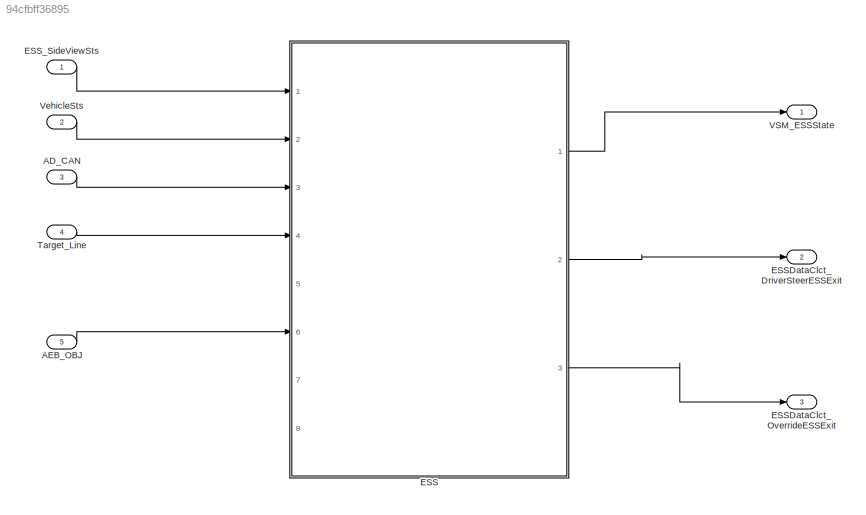
MODEL slx_94cfbff36895
KIND model
CONFIG AbsTol = auto
CONFIG EnableMultiTasking = off
CONFIG FixedStep = auto
CONFIG InitFcn = , if any(exist('rtifpga_mdlclblib', 'file') ~= 0), rtifpga_mdlclblib('Init', bdroot); end,\n, if any(exist('dsmpb_private', 'file') ~= 0), dsmpb_private('dsmpb_mdlclblib', 'Init', bdroot); end,\n
CONFIG MaxStep = auto
CONFIG MinStep = auto
CONFIG PostLoadFcn = if any(exist('dsrtsu_mdlpostloadfcn', 'file') ~= 0), dsrtsu_mdlpostloadfcn('Execute', bdroot); end
CONFIG RelTol = 1e-3
CONFIG SampleTimeConstraint = Unconstrained
CONFIG SolverName = FixedStepAuto
CONFIG StartTime = 0.0
CONFIG StopTime = Inf
BLOCK [Inport] AD_CAN
  OutDataTypeStr = Bus: ESS_AD_CAN_BUS
  Port = 3
BLOCK [Inport] AEB_OBJ
  OutDataTypeStr = Bus: TOS_AEB_LONOBJ_BUS
  Port = 5
BLOCK [SubSystem] ESS
  Ports = [8, 3]
  ReferencedSubsystem = PvtSubSys_VSM_ESS
  RequestExecContextInheritance = off
BLOCK [Outport] ESSDataClct_DriverSteerESSExit
  Port = 2
BLOCK [Outport] ESSDataClct_OverrideESSExit
  Port = 3
BLOCK [Inport] ESS_SideViewSts
  OutDataTypeStr = Bus: PLAN_DPC_ESS_BUS
BLOCK [Inport] Target_Line
  OutDataTypeStr = Bus: LSM_ESS_BUS
  Port = 4
BLOCK [Outport] VSM_ESSState
BLOCK [Inport] VehicleSts
  OutDataTypeStr = Bus: ESS_VehicleSts_BUS
  Port = 2
LINE AD_CAN:1 -> ESS:3
LINE AEB_OBJ:1 -> ESS:6
LINE ESS:1 -> VSM_ESSState:1
LINE ESS:2 -> ESSDataClct_DriverSteerESSExit:1
LINE ESS:3 -> ESSDataClct_OverrideESSExit:1
LINE ESS_SideViewSts:1 -> ESS:1
LINE Target_Line:1 -> ESS:4
LINE VehicleSts:1 -> ESS:2
